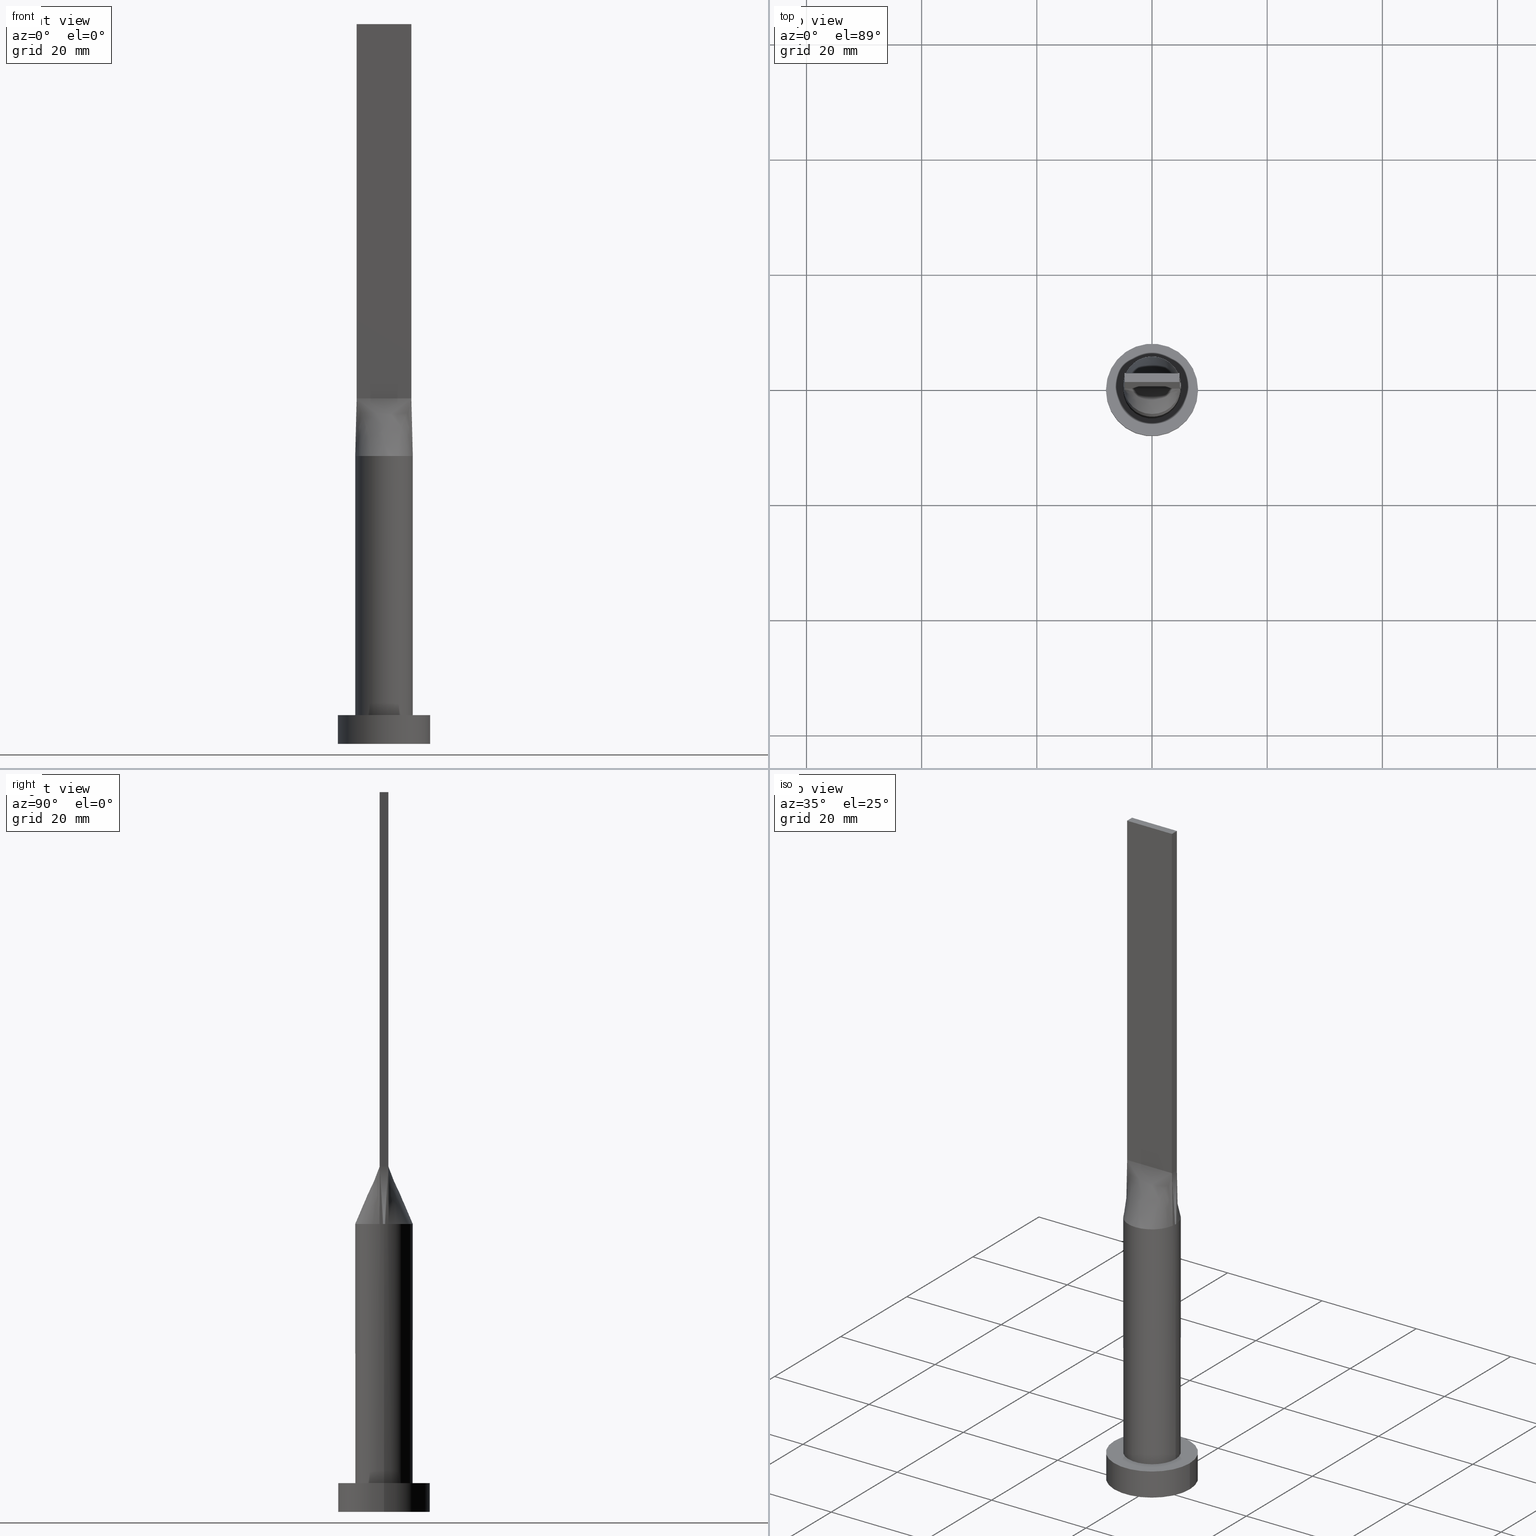
[diagram: canonical four-view strip — front | top / right | iso, engineering-drawing reading convention]
A machine part, canonical four-view strip (front | top / right | iso — engineering-drawing reading convention). The complete STEP part file that produces these views, byte-faithful:
ISO-10303-21;
HEADER;
FILE_DESCRIPTION (( 'STEP AP203' ),
    '1' );
FILE_NAME ('5fc5.STEP',
    '2023-02-13T09:35:22',
    ( '' ),
    ( '' ),
    'SwSTEP 2.0',
    'SolidWorks 2019',
    '' );
FILE_SCHEMA (( 'CONFIG_CONTROL_DESIGN' ));
ENDSEC;

DATA;
#1 = CARTESIAN_POINT ( 'NONE',  ( 2.177083333333337034, -0.7499999999999997780, 60.00000000000000000 ) ) ;
#2 = APPROVAL_DATE_TIME ( #150, #442 ) ;
#3 = CARTESIAN_POINT ( 'NONE',  ( 0.9895833333333176052, 0.7500000000000002220, 59.99999999999998579 ) ) ;
#4 = DESIGN_CONTEXT ( 'detailed design', #544, 'design' ) ;
#5 = ORIENTED_EDGE ( 'NONE', *, *, #249, .F. ) ;
#6 = COORDINATED_UNIVERSAL_TIME_OFFSET ( 1, 0, .AHEAD. ) ;
#7 = CC_DESIGN_DATE_AND_TIME_ASSIGNMENT ( #283, #380, ( #241 ) ) ;
#8 = CARTESIAN_POINT ( 'NONE',  ( -2.353781608410062010, 4.424438117685770777, 49.99999999999998579 ) ) ;
#9 = VECTOR ( 'NONE', #620, 1000.000000000000000 ) ;
#10 = CARTESIAN_POINT ( 'NONE',  ( -4.354166666666669627, 0.7500000000000002220, 60.00000000000000000 ) ) ;
#11 = CARTESIAN_POINT ( 'NONE',  ( -4.753727492665067444, 1.629988260829202007, 50.00000000000000711 ) ) ;
#12 = CARTESIAN_POINT ( 'NONE',  ( 0.000000000000000000, 0.000000000000000000, 49.99999999999999289 ) ) ;
#13 = B_SPLINE_SURFACE_WITH_KNOTS ( 'NONE', 3, 1, ( 
 ( #477, #97 ),
 ( #51, #138 ),
 ( #84, #245 ),
 ( #284, #37 ),
 ( #289, #42 ),
 ( #613, #382 ) ),
 .UNSPECIFIED., .F., .F., .F.,
 ( 4, 2, 4 ),
 ( 2, 2 ),
 ( 0.000000000000000000, 0.5000000000000000000, 1.000000000000000000 ),
 ( 0.000000000000000000, 1.000000000000000000 ),
 .UNSPECIFIED. ) ;
#14 = LINE ( 'NONE', #259, #219 ) ;
#15 = VECTOR ( 'NONE', #58, 1000.000000000000000 ) ;
#16 = ORIENTED_EDGE ( 'NONE', *, *, #342, .F. ) ;
#17 = CARTESIAN_POINT ( 'NONE',  ( -0.7119876437238006339, 4.961551549233178982, 49.99999999999999289 ) ) ;
#18 = CARTESIAN_POINT ( 'NONE',  ( 0.000000000000000000, 0.000000000000000000, 49.99999999999999289 ) ) ;
#19 = CARTESIAN_POINT ( 'NONE',  ( -4.750000000000000000, 0.7500000000000002220, 60.00000000000000000 ) ) ;
#20 = DIRECTION ( 'NONE',  ( -1.000000000000000000, 0.000000000000000000, 0.000000000000000000 ) ) ;
#21 = DIRECTION ( 'NONE',  ( -1.000000000000000000, 0.000000000000000000, 0.000000000000000000 ) ) ;
#22 = DIRECTION ( 'NONE',  ( 1.000000000000000000, 0.000000000000000000, 0.000000000000000000 ) ) ;
#23 = CARTESIAN_POINT ( 'NONE',  ( 4.999812818728077701, 1.241126956226958231E-15, 49.99999999999999289 ) ) ;
#24 = CARTESIAN_POINT ( 'NONE',  ( -4.332026455536841070, 2.547220758687717801, 49.99999999999999289 ) ) ;
#25 = EDGE_CURVE ( 'NONE', #526, #617, #64, .T. ) ;
#26 = CARTESIAN_POINT ( 'NONE',  ( -2.353781608410061121, -4.424438117685769889, 49.99999999999998579 ) ) ;
#27 = ORIENTED_EDGE ( 'NONE', *, *, #452, .T. ) ;
#28 = LOCAL_TIME ( 10, 35, 22.00000000000000000, #332 ) ;
#29 = CARTESIAN_POINT ( 'NONE',  ( 4.750000000000000000, -0.7499999999999997780, 60.00000000000000000 ) ) ;
#30 = CARTESIAN_POINT ( 'NONE',  ( 2.353781608410061121, -4.424438117685769889, 49.99999999999998579 ) ) ;
#31 = ORIENTED_EDGE ( 'NONE', *, *, #25, .T. ) ;
#32 = CARTESIAN_POINT ( 'NONE',  ( 0.000000000000000000, 0.000000000000000000, 0.000000000000000000 ) ) ;
#33 = DIRECTION ( 'NONE',  ( 1.000000000000000000, 0.000000000000000000, 0.000000000000000000 ) ) ;
#34 = EDGE_CURVE ( 'NONE', #548, #294, #518, .T. ) ;
#35 = ADVANCED_BREP_SHAPE_REPRESENTATION ( '5fc5', ( #136, #366 ), #166 ) ;
#36 = AXIS2_PLACEMENT_3D ( 'NONE', #94, #248, #38 ) ;
#37 = CARTESIAN_POINT ( 'NONE',  ( 4.750000000000000000, 0.2500000000000003331, 59.99999999999999289 ) ) ;
#38 = DIRECTION ( 'NONE',  ( 1.000000000000000000, 0.000000000000000000, -0.000000000000000000 ) ) ;
#39 = ORIENTED_EDGE ( 'NONE', *, *, #318, .T. ) ;
#40 = AXIS2_PLACEMENT_3D ( 'NONE', #222, #365, #363 ) ;
#41 = APPROVAL_DATE_TIME ( #469, #49 ) ;
#42 = CARTESIAN_POINT ( 'NONE',  ( 4.750000000000000000, 0.5000000000000002220, 59.99999999999999289 ) ) ;
#43 = ORIENTED_EDGE ( 'NONE', *, *, #361, .F. ) ;
#44 = LINE ( 'NONE', #390, #9 ) ;
#45 = B_SPLINE_CURVE_WITH_KNOTS ( 'NONE', 3,
 ( #293, #217, #206, #218, #307, #65, #261, #482, #158, #524, #233, #409, #319, #447, #17, #403, #322, #594, #275, #270, #597, #547, #24, #168, #538, #362 ),
 .UNSPECIFIED., .F., .F.,
 ( 4, 2, 2, 2, 2, 2, 2, 2, 2, 2, 2, 2, 4 ),
 ( 0.000000000000000000, 0.1250000000000001388, 0.2500000000000002220, 0.3125000000000002776, 0.3750000000000002776, 0.4375000000000002776, 0.5000000000000002220, 0.5625000000000002220, 0.6250000000000001110, 0.6875000000000001110, 0.7500000000000001110, 0.8750000000000001110, 1.000000000000000000 ),
 .UNSPECIFIED. ) ;
#46 = EDGE_LOOP ( 'NONE', ( #335, #98, #445, #104 ) ) ;
#47 = CARTESIAN_POINT ( 'NONE',  ( 1.583333333333336146, -0.7499999999999997780, 60.00000000000000000 ) ) ;
#48 = EDGE_LOOP ( 'NONE', ( #394, #505, #595, #588 ) ) ;
#49 = APPROVAL ( #432, 'NEUR�EN�' ) ;
#50 = AXIS2_PLACEMENT_3D ( 'NONE', #133, #127, #500 ) ;
#51 = CARTESIAN_POINT ( 'NONE',  ( 4.979355367185886116, -0.5230561106082984857, 49.99999999999999289 ) ) ;
#52 = LOCAL_TIME ( 10, 35, 22.00000000000000000, #6 ) ;
#53 = CARTESIAN_POINT ( 'NONE',  ( -4.750000000000000000, -0.7499999999999991118, 60.00000000000000000 ) ) ;
#54 = CARTESIAN_POINT ( 'NONE',  ( 0.3958333333333181603, 0.7500000000000002220, 59.99999999999998579 ) ) ;
#55 = EDGE_CURVE ( 'NONE', #131, #379, #154, .T. ) ;
#56 = CLOSED_SHELL ( 'NONE', ( #215, #273, #116, #221, #281, #152, #427, #479, #256, #513, #463, #392, #621, #530, #103 ) ) ;
#57 = CARTESIAN_POINT ( 'NONE',  ( 2.643217737595826566, 4.256483892511437439, 49.99999999999999289 ) ) ;
#58 = DIRECTION ( 'NONE',  ( 1.000000000000000000, -6.847592668329501559E-17, 0.000000000000000000 ) ) ;
#59 = CARTESIAN_POINT ( 'NONE',  ( 8.000000000000000000, 9.797174393178825657E-16, 5.000000000000000000 ) ) ;
#60 = CARTESIAN_POINT ( 'NONE',  ( -4.874625637456156291, 1.186344398896586716, 49.99999999999998579 ) ) ;
#61 = VERTEX_POINT ( 'NONE', #184 ) ;
#62 = CIRCLE ( 'NONE', #611, 5.000000000000000000 ) ;
#63 = CARTESIAN_POINT ( 'NONE',  ( -4.750000000000000000, 0.7500000000000002220, 125.0000000000000000 ) ) ;
#64 = LINE ( 'NONE', #437, #180 ) ;
#65 = CARTESIAN_POINT ( 'NONE',  ( 3.404830936252119411, 3.673931880027066388, 50.00000000000000000 ) ) ;
#66 = EDGE_CURVE ( 'NONE', #617, #325, #85, .T. ) ;
#67 = PERSON_AND_ORGANIZATION ( #155, #200 ) ;
#68 = CARTESIAN_POINT ( 'NONE',  ( 1.732223102076449583, -4.702695359254404295, 49.99999999999999289 ) ) ;
#69 = CIRCLE ( 'NONE', #557, 5.000000000000000000 ) ;
#70 = FACE_OUTER_BOUND ( 'NONE', #471, .T. ) ;
#71 = CARTESIAN_POINT ( 'NONE',  ( 0.000000000000000000, 0.000000000000000000, 5.000000000000000000 ) ) ;
#72 = CARTESIAN_POINT ( 'NONE',  ( -4.753727492665065668, -1.629988260829201119, 50.00000000000000000 ) ) ;
#73 = EDGE_CURVE ( 'NONE', #294, #548, #405, .T. ) ;
#74 =( NAMED_UNIT ( * ) SI_UNIT ( $, .STERADIAN. ) SOLID_ANGLE_UNIT ( ) );
#75 = CARTESIAN_POINT ( 'NONE',  ( 0.000000000000000000, 0.000000000000000000, 49.99999999999999289 ) ) ;
#76 = CARTESIAN_POINT ( 'NONE',  ( -4.979355367185886116, 0.5230561106082979306, 49.99999999999999289 ) ) ;
#77 = CARTESIAN_POINT ( 'NONE',  ( 1.400150253878312157, -4.812847332616943419, 49.99999999999997868 ) ) ;
#78 = CARTESIAN_POINT ( 'NONE',  ( 0.000000000000000000, 0.000000000000000000, 49.99999999999999289 ) ) ;
#79 = VECTOR ( 'NONE', #177, 1000.000000000000114 ) ;
#80 = PLANE ( 'NONE',  #264 ) ;
#81 = CARTESIAN_POINT ( 'NONE',  ( 0.000000000000000000, 0.000000000000000000, 5.000000000000000000 ) ) ;
#82 = ORIENTED_EDGE ( 'NONE', *, *, #553, .F. ) ;
#83 = APPROVAL_ROLE ( '' ) ;
#84 = CARTESIAN_POINT ( 'NONE',  ( 4.999625637456156291, -0.2615280553041495204, 49.99999999999999289 ) ) ;
#85 = LINE ( 'NONE', #179, #290 ) ;
#86 = CALENDAR_DATE ( 2023, 13, 2 ) ;
#87 = CYLINDRICAL_SURFACE ( 'NONE', #581, 5.000000000000000000 ) ;
#88 = DIRECTION ( 'NONE',  ( 0.000000000000000000, 0.000000000000000000, 1.000000000000000000 ) ) ;
#89 = DIRECTION ( 'NONE',  ( -1.000000000000000000, 0.000000000000000000, 0.000000000000000000 ) ) ;
#90 = VERTEX_POINT ( 'NONE', #338 ) ;
#91 = APPROVAL_PERSON_ORGANIZATION ( #519, #442, #83 ) ;
#92 = CARTESIAN_POINT ( 'NONE',  ( 4.354166666666667851, -0.7499999999999997780, 60.00000000000000000 ) ) ;
#93 = FACE_OUTER_BOUND ( 'NONE', #413, .T. ) ;
#94 = CARTESIAN_POINT ( 'NONE',  ( 0.000000000000000000, 0.000000000000000000, 5.000000000000000000 ) ) ;
#95 = CC_DESIGN_PERSON_AND_ORGANIZATION_ASSIGNMENT ( #435, #527, ( #246 ) ) ;
#96 = CARTESIAN_POINT ( 'NONE',  ( 0.000000000000000000, 0.000000000000000000, 49.99999999999999289 ) ) ;
#97 = CARTESIAN_POINT ( 'NONE',  ( 4.750000000000000000, -0.7499999999999997780, 60.00000000000000000 ) ) ;
#98 = ORIENTED_EDGE ( 'NONE', *, *, #34, .F. ) ;
#99 = APPROVAL_DATE_TIME ( #417, #388 ) ;
#100 = VECTOR ( 'NONE', #323, 1000.000000000000000 ) ;
#101 = CARTESIAN_POINT ( 'NONE',  ( -1.400150253878312823, 4.812847332616943419, 49.99999999999999289 ) ) ;
#102 = EDGE_LOOP ( 'NONE', ( #282, #443, #607, #359 ) ) ;
#103 = ADVANCED_FACE ( 'NONE', ( #93 ), #602, .T. ) ;
#104 = ORIENTED_EDGE ( 'NONE', *, *, #329, .T. ) ;
#105 = PERSON_AND_ORGANIZATION_ROLE ( 'creator' ) ;
#106 = CARTESIAN_POINT ( 'NONE',  ( -2.770833333333342807, 0.7500000000000002220, 60.00000000000000000 ) ) ;
#107 = PERSON_AND_ORGANIZATION ( #155, #200 ) ;
#108 = AXIS2_PLACEMENT_3D ( 'NONE', #81, #560, #568 ) ;
#109 = CARTESIAN_POINT ( 'NONE',  ( 0.7916666666666508645, 0.7500000000000002220, 59.99999999999998579 ) ) ;
#110 = PRODUCT ( '5fc5', '5fc5', '', ( #119 ) ) ;
#111 = CARTESIAN_POINT ( 'NONE',  ( 5.000000000000000000, 6.123233995736765296E-16, 5.000000000000000000 ) ) ;
#112 = LINE ( 'NONE', #63, #387 ) ;
#113 = AXIS2_PLACEMENT_3D ( 'NONE', #451, #272, #21 ) ;
#114 = DIRECTION ( 'NONE',  ( -0.000000000000000000, -0.000000000000000000, -1.000000000000000000 ) ) ;
#115 = DIRECTION ( 'NONE',  ( -0.000000000000000000, -0.000000000000000000, -1.000000000000000000 ) ) ;
#116 = ADVANCED_FACE ( 'NONE', ( #429 ), #170, .T. ) ;
#117 = DIRECTION ( 'NONE',  ( -0.000000000000000000, -0.000000000000000000, -1.000000000000000000 ) ) ;
#118 = ORIENTED_EDGE ( 'NONE', *, *, #593, .T. ) ;
#119 = MECHANICAL_CONTEXT ( 'NONE', #162, 'mechanical' ) ;
#120 = LINE ( 'NONE', #496, #157 ) ;
#121 = ORIENTED_EDGE ( 'NONE', *, *, #137, .F. ) ;
#122 = CARTESIAN_POINT ( 'NONE',  ( 4.750000000000000000, 0.7500000000000002220, 60.00000000000000000 ) ) ;
#123 = CC_DESIGN_PERSON_AND_ORGANIZATION_ASSIGNMENT ( #295, #105, ( #241 ) ) ;
#124 = FACE_BOUND ( 'NONE', #468, .T. ) ;
#125 = DIRECTION ( 'NONE',  ( 1.000000000000000000, 0.000000000000000000, 0.000000000000000000 ) ) ;
#126 = CARTESIAN_POINT ( 'NONE',  ( -0.7916666666666640761, -0.7499999999999995559, 60.00000000000000000 ) ) ;
#127 = DIRECTION ( 'NONE',  ( 0.000000000000000000, 0.000000000000000000, 1.000000000000000000 ) ) ;
#128 = PLANE ( 'NONE',  #36 ) ;
#129 = PERSON_AND_ORGANIZATION_ROLE ( 'design_owner' ) ;
#130 = CARTESIAN_POINT ( 'NONE',  ( -4.750000000000000000, -0.7499999999999991118, 60.00000000000000000 ) ) ;
#131 = VERTEX_POINT ( 'NONE', #360 ) ;
#132 = CARTESIAN_POINT ( 'NONE',  ( -0.3958333333333313164, -0.7499999999999995559, 59.99999999999998579 ) ) ;
#133 = CARTESIAN_POINT ( 'NONE',  ( 0.000000000000000000, 0.000000000000000000, 0.000000000000000000 ) ) ;
#134 = CIRCLE ( 'NONE', #532, 8.000000000000000000 ) ;
#135 = ORIENTED_EDGE ( 'NONE', *, *, #494, .T. ) ;
#136 = MANIFOLD_SOLID_BREP ( 'P�idat vysunut�m5', #56 ) ;
#137 = EDGE_CURVE ( 'NONE', #325, #90, #309, .T. ) ;
#138 = CARTESIAN_POINT ( 'NONE',  ( 4.750000000000000000, -0.4999999999999996669, 59.99999999999999289 ) ) ;
#139 = CARTESIAN_POINT ( 'NONE',  ( 0.000000000000000000, 0.000000000000000000, 125.0000000000000000 ) ) ;
#140 = VERTEX_POINT ( 'NONE', #326 ) ;
#141 = PERSON_AND_ORGANIZATION ( #155, #200 ) ;
#142 = DIRECTION ( 'NONE',  ( 1.000000000000000000, 0.000000000000000000, 0.000000000000000000 ) ) ;
#143 = CARTESIAN_POINT ( 'NONE',  ( 1.979166666666669849, -0.7499999999999997780, 60.00000000000000000 ) ) ;
#144 = CARTESIAN_POINT ( 'NONE',  ( 3.166666666666658081, 0.7500000000000002220, 60.00000000000000000 ) ) ;
#145 = EDGE_CURVE ( 'NONE', #202, #220, #344, .T. ) ;
#146 = ORIENTED_EDGE ( 'NONE', *, *, #361, .T. ) ;
#147 = CARTESIAN_POINT ( 'NONE',  ( 2.643217737595827455, -4.256483892511438327, 49.99999999999998579 ) ) ;
#148 = DIRECTION ( 'NONE',  ( 1.000000000000000000, 0.000000000000000000, 0.000000000000000000 ) ) ;
#149 = FACE_OUTER_BOUND ( 'NONE', #498, .T. ) ;
#150 = DATE_AND_TIME ( #189, #230 ) ;
#151 = CARTESIAN_POINT ( 'NONE',  ( -4.938814826645345768, -0.7798128673650532861, 49.99999999999999289 ) ) ;
#152 = ADVANCED_FACE ( 'NONE', ( #510 ), #87, .T. ) ;
#153 = DIRECTION ( 'NONE',  ( 0.000000000000000000, 0.000000000000000000, 1.000000000000000000 ) ) ;
#154 = LINE ( 'NONE', #346, #552 ) ;
#155 = PERSON ( 'NEUR�EN�', 'NEUR�EN�', 'NEUR�EN�', ('NEUR�EN�'), ('NEUR�EN�'), ('NEUR�EN�') ) ;
#156 = DATE_AND_TIME ( #563, #600 ) ;
#157 = VECTOR ( 'NONE', #263, 1000.000000000000000 ) ;
#158 = CARTESIAN_POINT ( 'NONE',  ( 2.353781608410062454, 4.424438117685770777, 49.99999999999999289 ) ) ;
#159 = PERSON_AND_ORGANIZATION_ROLE ( 'classification_officer' ) ;
#160 = DIRECTION ( 'NONE',  ( 0.01887803397728732291, -0.002980742206940072483, 0.9998173508241633423 ) ) ;
#161 = DIRECTION ( 'NONE',  ( -0.01887803397728732291, -0.002980742206940062075, -0.9998173508241633423 ) ) ;
#162 = APPLICATION_CONTEXT ( 'configuration controlled 3d designs of mechanical parts and assemblies' ) ;
#163 = CARTESIAN_POINT ( 'NONE',  ( -8.000000000000000000, 0.000000000000000000, 5.000000000000000000 ) ) ;
#164 = EDGE_CURVE ( 'NONE', #131, #617, #187, .T. ) ;
#165 = CARTESIAN_POINT ( 'NONE',  ( 0.7119876437238013001, 4.961551549233180758, 49.99999999999999289 ) ) ;
#166 =( GEOMETRIC_REPRESENTATION_CONTEXT ( 3 ) GLOBAL_UNCERTAINTY_ASSIGNED_CONTEXT ( ( #487 ) ) GLOBAL_UNIT_ASSIGNED_CONTEXT ( ( #501, #554, #74 ) ) REPRESENTATION_CONTEXT ( 'NONE', 'WORKASPACE' ) );
#167 = EDGE_LOOP ( 'NONE', ( #534, #232, #27, #491, #419 ) ) ;
#168 = CARTESIAN_POINT ( 'NONE',  ( -4.753727492665067444, 1.629988260829202007, 50.00000000000000711 ) ) ;
#169 = DIRECTION ( 'NONE',  ( 0.000000000000000000, 0.000000000000000000, 1.000000000000000000 ) ) ;
#170 = CYLINDRICAL_SURFACE ( 'NONE', #566, 8.000000000000000000 ) ;
#171 = PRODUCT_DEFINITION_SHAPE ( 'NONE', 'NONE',  #241 ) ;
#172 = LINE ( 'NONE', #455, #79 ) ;
#173 = CARTESIAN_POINT ( 'NONE',  ( -2.643217737595827010, -4.256483892511436551, 49.99999999999997868 ) ) ;
#174 = APPLICATION_PROTOCOL_DEFINITION ( 'international standard', 'config_control_design', 1994, #162 ) ;
#175 = ORIENTED_EDGE ( 'NONE', *, *, #55, .F. ) ;
#176 = CARTESIAN_POINT ( 'NONE',  ( 0.000000000000000000, 0.000000000000000000, 0.000000000000000000 ) ) ;
#177 = DIRECTION ( 'NONE',  ( -0.01887803397728732291, 0.002980742206940386902, 0.9998173508241633423 ) ) ;
#178 = LINE ( 'NONE', #19, #186 ) ;
#179 = CARTESIAN_POINT ( 'NONE',  ( 4.750000000000000000, 0.7500000000000002220, 60.00000000000000000 ) ) ;
#180 = VECTOR ( 'NONE', #529, 1000.000000000000000 ) ;
#181 = ORIENTED_EDGE ( 'NONE', *, *, #73, .T. ) ;
#182 = APPROVAL_ROLE ( '' ) ;
#183 = CARTESIAN_POINT ( 'NONE',  ( -4.354166666666666963, -0.7499999999999992228, 60.00000000000000000 ) ) ;
#184 = CARTESIAN_POINT ( 'NONE',  ( -4.938831943662458812, 0.7798155886440080176, 49.99999999999999289 ) ) ;
#185 = VERTEX_POINT ( 'NONE', #467 ) ;
#186 = VECTOR ( 'NONE', #271, 1000.000000000000000 ) ;
#187 = LINE ( 'NONE', #199, #590 ) ;
#188 = ORIENTED_EDGE ( 'NONE', *, *, #553, .T. ) ;
#189 = CALENDAR_DATE ( 2023, 13, 2 ) ;
#190 = CARTESIAN_POINT ( 'NONE',  ( 3.168723755431094080, -3.881165404529570484, 50.00000000000000000 ) ) ;
#191 = ORIENTED_EDGE ( 'NONE', *, *, #292, .F. ) ;
#192 = ORIENTED_EDGE ( 'NONE', *, *, #34, .T. ) ;
#193 = APPROVAL_ROLE ( '' ) ;
#194 = CARTESIAN_POINT ( 'NONE',  ( 3.958333333333328596, 0.7500000000000002220, 60.00000000000000000 ) ) ;
#195 = CC_DESIGN_PERSON_AND_ORGANIZATION_ASSIGNMENT ( #107, #159, ( #592 ) ) ;
#196 = ORIENTED_EDGE ( 'NONE', *, *, #474, .F. ) ;
#197 = CARTESIAN_POINT ( 'NONE',  ( -4.999625637456156291, 0.2615280553041492984, 49.99999999999999289 ) ) ;
#198 = CARTESIAN_POINT ( 'NONE',  ( 2.177083333333320159, 0.7500000000000002220, 59.99999999999998579 ) ) ;
#199 = CARTESIAN_POINT ( 'NONE',  ( -4.750000000000000000, -0.7499999999999991118, 60.00000000000000000 ) ) ;
#200 = ORGANIZATION ( 'NEUR�EN�', 'NEUR�EN�', '' ) ;
#201 = DIRECTION ( 'NONE',  ( 0.000000000000000000, -1.000000000000000000, 0.000000000000000000 ) ) ;
#202 = VERTEX_POINT ( 'NONE', #111 ) ;
#203 = EDGE_CURVE ( 'NONE', #286, #280, #277, .T. ) ;
#204 = CARTESIAN_POINT ( 'NONE',  ( 4.750000000000000000, 0.7500000000000002220, 125.0000000000000000 ) ) ;
#205 = DIRECTION ( 'NONE',  ( 0.000000000000000000, 0.000000000000000000, 1.000000000000000000 ) ) ;
#206 = CARTESIAN_POINT ( 'NONE',  ( 4.753727492665065668, 1.629988260829201563, 49.99999999999998579 ) ) ;
#207 = DATE_TIME_ROLE ( 'classification_date' ) ;
#208 = CIRCLE ( 'NONE', #570, 8.000000000000000000 ) ;
#209 = CARTESIAN_POINT ( 'NONE',  ( -0.9895833333333476922, 0.7500000000000002220, 60.00000000000000000 ) ) ;
#210 = DIRECTION ( 'NONE',  ( 0.000000000000000000, 0.000000000000000000, 1.000000000000000000 ) ) ;
#211 = CARTESIAN_POINT ( 'NONE',  ( -4.750000000000000000, 0.7500000000000002220, 60.00000000000000000 ) ) ;
#212 = EDGE_LOOP ( 'NONE', ( #556, #561, #562, #31 ) ) ;
#213 = CARTESIAN_POINT ( 'NONE',  ( 4.750000000000000000, 0.7500000000000002220, 125.0000000000000000 ) ) ;
#214 = CARTESIAN_POINT ( 'NONE',  ( 8.000000000000000000, 9.797174393178825657E-16, 0.000000000000000000 ) ) ;
#215 = ADVANCED_FACE ( 'NONE', ( #70 ), #266, .T. ) ;
#216 = AXIS2_PLACEMENT_3D ( 'NONE', #431, #210, #391 ) ;
#217 = CARTESIAN_POINT ( 'NONE',  ( 4.874625637456157179, 1.186344398896585606, 49.99999999999999289 ) ) ;
#218 = CARTESIAN_POINT ( 'NONE',  ( 4.332026455536839293, 2.547220758687718689, 49.99999999999998579 ) ) ;
#219 = VECTOR ( 'NONE', #160, 1000.000000000000114 ) ;
#220 = VERTEX_POINT ( 'NONE', #457 ) ;
#221 = ADVANCED_FACE ( 'NONE', ( #124, #599 ), #128, .T. ) ;
#222 = CARTESIAN_POINT ( 'NONE',  ( -4.750000000000000000, -0.7499999999999991118, 125.0000000000000000 ) ) ;
#223 = CARTESIAN_POINT ( 'NONE',  ( -3.166666666666665630, -0.7499999999999993339, 60.00000000000000000 ) ) ;
#224 = CARTESIAN_POINT ( 'NONE',  ( 0.000000000000000000, 0.000000000000000000, 5.000000000000000000 ) ) ;
#225 = PERSON_AND_ORGANIZATION ( #155, #200 ) ;
#226 = AXIS2_PLACEMENT_3D ( 'NONE', #139, #550, #328 ) ;
#227 = DIRECTION ( 'NONE',  ( -0.000000000000000000, -0.000000000000000000, -1.000000000000000000 ) ) ;
#228 = ORIENTED_EDGE ( 'NONE', *, *, #292, .T. ) ;
#229 = DIRECTION ( 'NONE',  ( 0.000000000000000000, 0.000000000000000000, 1.000000000000000000 ) ) ;
#230 = LOCAL_TIME ( 10, 35, 22.00000000000000000, #481 ) ;
#231 = VECTOR ( 'NONE', #396, 1000.000000000000000 ) ;
#232 = ORIENTED_EDGE ( 'NONE', *, *, #474, .T. ) ;
#233 = CARTESIAN_POINT ( 'NONE',  ( 1.400150253878312823, 4.812847332616943419, 49.99999999999999289 ) ) ;
#234 = CARTESIAN_POINT ( 'NONE',  ( 0.1979166666666679897, -0.7499999999999994449, 59.99999999999997868 ) ) ;
#235 = EDGE_CURVE ( 'NONE', #464, #526, #305, .T. ) ;
#236 = COORDINATED_UNIVERSAL_TIME_OFFSET ( 1, 0, .AHEAD. ) ;
#237 = FACE_OUTER_BOUND ( 'NONE', #586, .T. ) ;
#238 = SECURITY_CLASSIFICATION_LEVEL ( 'unclassified' ) ;
#239 = CARTESIAN_POINT ( 'NONE',  ( 2.770833333333337034, -0.7499999999999997780, 60.00000000000000000 ) ) ;
#240 = ORIENTED_EDGE ( 'NONE', *, *, #604, .T. ) ;
#241 = PRODUCT_DEFINITION ( 'NEZN�M�', '', #246, #4 ) ;
#242 = CARTESIAN_POINT ( 'NONE',  ( 4.938833698301754893, -0.7798158709413661738, 49.99999999999999289 ) ) ;
#243 = DIRECTION ( 'NONE',  ( -0.000000000000000000, 1.000000000000000000, -0.000000000000000000 ) ) ;
#244 = CARTESIAN_POINT ( 'NONE',  ( 4.750000000000000000, -0.7499999999999997780, 125.0000000000000000 ) ) ;
#245 = CARTESIAN_POINT ( 'NONE',  ( 4.750000000000000000, -0.2499999999999996669, 59.99999999999999289 ) ) ;
#246 = PRODUCT_DEFINITION_FORMATION_WITH_SPECIFIED_SOURCE ( 'LIBOVOLN�', '', #110, .NOT_KNOWN. ) ;
#247 = CARTESIAN_POINT ( 'NONE',  ( 4.354166666666664298, 0.7500000000000002220, 60.00000000000000000 ) ) ;
#248 = DIRECTION ( 'NONE',  ( 0.000000000000000000, 0.000000000000000000, 1.000000000000000000 ) ) ;
#249 = EDGE_CURVE ( 'NONE', #480, #330, #458, .T. ) ;
#250 = APPROVAL_STATUS ( 'not_yet_approved' ) ;
#251 = CARTESIAN_POINT ( 'NONE',  ( -1.385416666666680285, 0.7500000000000002220, 60.00000000000000000 ) ) ;
#252 = ORIENTED_EDGE ( 'NONE', *, *, #369, .F. ) ;
#253 = VERTEX_POINT ( 'NONE', #214 ) ;
#254 = CARTESIAN_POINT ( 'NONE',  ( 1.583333333333318604, 0.7500000000000002220, 59.99999999999998579 ) ) ;
#255 = VECTOR ( 'NONE', #333, 1000.000000000000114 ) ;
#256 = ADVANCED_FACE ( 'NONE', ( #398 ), #603, .T. ) ;
#257 = CARTESIAN_POINT ( 'NONE',  ( -3.166666666666675400, 0.7500000000000002220, 60.00000000000000000 ) ) ;
#258 = CARTESIAN_POINT ( 'NONE',  ( -4.750000000000000000, -0.7499999999999991118, 125.0000000000000000 ) ) ;
#259 = CARTESIAN_POINT ( 'NONE',  ( -4.844407413322673328, 0.7649064336825274202, 54.99999999999999289 ) ) ;
#260 = VECTOR ( 'NONE', #411, 1000.000000000000000 ) ;
#261 = CARTESIAN_POINT ( 'NONE',  ( 3.168723755431093192, 3.881165404529570040, 49.99999999999999289 ) ) ;
#262 = EDGE_CURVE ( 'NONE', #294, #253, #300, .T. ) ;
#263 = DIRECTION ( 'NONE',  ( -0.000000000000000000, -0.000000000000000000, -1.000000000000000000 ) ) ;
#264 = AXIS2_PLACEMENT_3D ( 'NONE', #276, #601, #372 ) ;
#265 = DIRECTION ( 'NONE',  ( 1.000000000000000000, 0.000000000000000000, 0.000000000000000000 ) ) ;
#266 = CYLINDRICAL_SURFACE ( 'NONE', #113, 5.000000000000000000 ) ;
#267 = B_SPLINE_SURFACE_WITH_KNOTS ( 'NONE', 3, 1, ( 
 ( #424, #287 ),
 ( #430, #247 ),
 ( #616, #194 ),
 ( #385, #144 ),
 ( #337, #426 ),
 ( #618, #198 ),
 ( #386, #571 ),
 ( #57, #254 ),
 ( #297, #399 ),
 ( #483, #3 ),
 ( #582, #109 ),
 ( #165, #54 ),
 ( #395, #304 ),
 ( #345, #393 ),
 ( #591, #528 ),
 ( #101, #348 ),
 ( #436, #209 ),
 ( #8, #251 ),
 ( #301, #578 ),
 ( #439, #486 ),
 ( #440, #492 ),
 ( #585, #106 ),
 ( #358, #257 ),
 ( #11, #355 ),
 ( #60, #10 ),
 ( #533, #211 ) ),
 .UNSPECIFIED., .F., .F., .F.,
 ( 4, 2, 2, 2, 2, 2, 2, 2, 2, 2, 2, 2, 4 ),
 ( 2, 2 ),
 ( 0.000000000000000000, 0.1250000000000001388, 0.2500000000000002220, 0.3125000000000002776, 0.3750000000000002776, 0.4375000000000002776, 0.5000000000000002220, 0.5625000000000002220, 0.6250000000000001110, 0.6875000000000001110, 0.7500000000000001110, 0.8750000000000001110, 1.000000000000000000 ),
 ( 0.000000000000000000, 1.000000000000000000 ),
 .UNSPECIFIED. ) ;
#268 = CARTESIAN_POINT ( 'NONE',  ( -2.770833333333332149, -0.7499999999999994449, 60.00000000000000000 ) ) ;
#269 = CARTESIAN_POINT ( 'NONE',  ( 0.000000000000000000, 0.000000000000000000, 49.99999999999999289 ) ) ;
#270 = CARTESIAN_POINT ( 'NONE',  ( -3.168723755431092748, 3.881165404529570484, 49.99999999999997868 ) ) ;
#271 = DIRECTION ( 'NONE',  ( 0.000000000000000000, -1.000000000000000000, 0.000000000000000000 ) ) ;
#272 = DIRECTION ( 'NONE',  ( -0.000000000000000000, -0.000000000000000000, -1.000000000000000000 ) ) ;
#273 = ADVANCED_FACE ( 'NONE', ( #321 ), #402, .T. ) ;
#274 = CARTESIAN_POINT ( 'NONE',  ( 5.000000000000000000, 6.123233995736765296E-16, 49.99999999999999289 ) ) ;
#275 = CARTESIAN_POINT ( 'NONE',  ( -2.643217737595827455, 4.256483892511438327, 49.99999999999998579 ) ) ;
#276 = CARTESIAN_POINT ( 'NONE',  ( -4.750000000000000000, 0.7500000000000002220, 125.0000000000000000 ) ) ;
#277 = LINE ( 'NONE', #408, #484 ) ;
#278 = ORIENTED_EDGE ( 'NONE', *, *, #164, .T. ) ;
#279 = CARTESIAN_POINT ( 'NONE',  ( 4.938814826645345768, -0.7798128673650571718, 49.99999999999999289 ) ) ;
#280 = VERTEX_POINT ( 'NONE', #373 ) ;
#281 = ADVANCED_FACE ( 'NONE', ( #416 ), #551, .F. ) ;
#282 = ORIENTED_EDGE ( 'NONE', *, *, #308, .T. ) ;
#283 = DATE_AND_TIME ( #86, #28 ) ;
#284 = CARTESIAN_POINT ( 'NONE',  ( 4.999625637456156291, 0.2615280553041483547, 49.99999999999999289 ) ) ;
#285 = AXIS2_PLACEMENT_3D ( 'NONE', #204, #201, #465 ) ;
#286 = VERTEX_POINT ( 'NONE', #213 ) ;
#287 = CARTESIAN_POINT ( 'NONE',  ( 4.750000000000000000, 0.7500000000000002220, 60.00000000000000000 ) ) ;
#288 = ORIENTED_EDGE ( 'NONE', *, *, #25, .F. ) ;
#289 = CARTESIAN_POINT ( 'NONE',  ( 4.979355367185886116, 0.5230561106082972644, 49.99999999999999289 ) ) ;
#290 = VECTOR ( 'NONE', #243, 1000.000000000000000 ) ;
#291 = CARTESIAN_POINT ( 'NONE',  ( 4.844407413322673328, 0.7649064336825270871, 54.99999999999999289 ) ) ;
#292 = EDGE_CURVE ( 'NONE', #615, #379, #472, .T. ) ;
#293 = CARTESIAN_POINT ( 'NONE',  ( 4.938814826645345768, 0.7798128673650538412, 49.99999999999999289 ) ) ;
#294 = VERTEX_POINT ( 'NONE', #543 ) ;
#295 = PERSON_AND_ORGANIZATION ( #155, #200 ) ;
#296 = CARTESIAN_POINT ( 'NONE',  ( -4.750000000000000000, -0.4999999999999990563, 59.99999999999999289 ) ) ;
#297 = CARTESIAN_POINT ( 'NONE',  ( 2.353781608410062454, 4.424438117685770777, 49.99999999999999289 ) ) ;
#298 = COORDINATED_UNIVERSAL_TIME_OFFSET ( 1, 0, .AHEAD. ) ;
#299 = CC_DESIGN_PERSON_AND_ORGANIZATION_ASSIGNMENT ( #141, #506, ( #246 ) ) ;
#300 = LINE ( 'NONE', #59, #231 ) ;
#301 = CARTESIAN_POINT ( 'NONE',  ( -2.643217737595827455, 4.256483892511438327, 49.99999999999998579 ) ) ;
#302 = AXIS2_PLACEMENT_3D ( 'NONE', #397, #520, #153 ) ;
#303 = CC_DESIGN_APPROVAL ( #49, ( #592 ) ) ;
#304 = CARTESIAN_POINT ( 'NONE',  ( 0.1979166666666522800, 0.7500000000000001110, 59.99999999999997868 ) ) ;
#305 = LINE ( 'NONE', #258, #15 ) ;
#306 = CARTESIAN_POINT ( 'NONE',  ( -4.999625637456156291, -0.2615280553041481326, 49.99999999999999289 ) ) ;
#307 = CARTESIAN_POINT ( 'NONE',  ( 4.029217956433126524, 3.021257902548482477, 50.00000000000000000 ) ) ;
#308 = EDGE_CURVE ( 'NONE', #379, #480, #410, .T. ) ;
#309 = LINE ( 'NONE', #310, #260 ) ;
#310 = CARTESIAN_POINT ( 'NONE',  ( -4.750000000000000000, 0.7500000000000002220, 60.00000000000000000 ) ) ;
#311 = CARTESIAN_POINT ( 'NONE',  ( 0.3560391241594588196, -5.000000000000000888, 50.00000000000000000 ) ) ;
#312 = CARTESIAN_POINT ( 'NONE',  ( 0.000000000000000000, 0.000000000000000000, 5.000000000000000000 ) ) ;
#313 = LINE ( 'NONE', #401, #541 ) ;
#314 = DIRECTION ( 'NONE',  ( 0.000000000000000000, 0.000000000000000000, 1.000000000000000000 ) ) ;
#315 = APPROVAL_PERSON_ORGANIZATION ( #485, #49, #182 ) ;
#316 = ORIENTED_EDGE ( 'NONE', *, *, #262, .T. ) ;
#317 = CARTESIAN_POINT ( 'NONE',  ( -4.874625637456154514, -1.186344398896584718, 50.00000000000000000 ) ) ;
#318 = EDGE_CURVE ( 'NONE', #253, #140, #208, .T. ) ;
#319 = CARTESIAN_POINT ( 'NONE',  ( 0.3560391241594590972, 5.000000000000001776, 50.00000000000000000 ) ) ;
#320 = CARTESIAN_POINT ( 'NONE',  ( 0.3958333333333353132, -0.7499999999999994449, 59.99999999999998579 ) ) ;
#321 = FACE_OUTER_BOUND ( 'NONE', #546, .T. ) ;
#322 = CARTESIAN_POINT ( 'NONE',  ( -1.732223102076449806, 4.702695359254402518, 49.99999999999998579 ) ) ;
#323 = DIRECTION ( 'NONE',  ( -0.000000000000000000, -0.000000000000000000, -1.000000000000000000 ) ) ;
#324 = AXIS2_PLACEMENT_3D ( 'NONE', #312, #115, #20 ) ;
#325 = VERTEX_POINT ( 'NONE', #122 ) ;
#326 = CARTESIAN_POINT ( 'NONE',  ( -8.000000000000000000, 0.000000000000000000, 0.000000000000000000 ) ) ;
#327 = CARTESIAN_POINT ( 'NONE',  ( 3.404830936252118967, -3.673931880027069496, 50.00000000000000711 ) ) ;
#328 = DIRECTION ( 'NONE',  ( 1.000000000000000000, 0.000000000000000000, -0.000000000000000000 ) ) ;
#329 = EDGE_CURVE ( 'NONE', #140, #253, #134, .T. ) ;
#330 = VERTEX_POINT ( 'NONE', #23 ) ;
#331 = ORIENTED_EDGE ( 'NONE', *, *, #73, .F. ) ;
#332 = COORDINATED_UNIVERSAL_TIME_OFFSET ( 1, 0, .AHEAD. ) ;
#333 = DIRECTION ( 'NONE',  ( -0.01887803397728732291, -0.002980742206940007865, 0.9998173508241633423 ) ) ;
#334 = ORIENTED_EDGE ( 'NONE', *, *, #452, .F. ) ;
#335 = ORIENTED_EDGE ( 'NONE', *, *, #262, .F. ) ;
#336 = DIRECTION ( 'NONE',  ( -0.000000000000000000, -0.000000000000000000, -1.000000000000000000 ) ) ;
#337 = CARTESIAN_POINT ( 'NONE',  ( 4.029217956433126524, 3.021257902548482477, 50.00000000000000000 ) ) ;
#338 = CARTESIAN_POINT ( 'NONE',  ( -4.750000000000000000, 0.7500000000000002220, 60.00000000000000000 ) ) ;
#339 = CIRCLE ( 'NONE', #522, 5.000000000000000000 ) ;
#340 = ORIENTED_EDGE ( 'NONE', *, *, #577, .T. ) ;
#341 = FACE_OUTER_BOUND ( 'NONE', #48, .T. ) ;
#342 = EDGE_CURVE ( 'NONE', #90, #131, #178, .T. ) ;
#343 = CARTESIAN_POINT ( 'NONE',  ( 4.029217956433124748, -3.021257902548483365, 50.00000000000002842 ) ) ;
#344 = CIRCLE ( 'NONE', #579, 5.000000000000000000 ) ;
#345 = CARTESIAN_POINT ( 'NONE',  ( -0.3560391241594593192, 5.000000000000000000, 50.00000000000000711 ) ) ;
#346 = CARTESIAN_POINT ( 'NONE',  ( -4.844407413322673328, -0.7649064336825261989, 54.99999999999999289 ) ) ;
#347 = CALENDAR_DATE ( 2023, 13, 2 ) ;
#348 = CARTESIAN_POINT ( 'NONE',  ( -0.7916666666666816177, 0.7500000000000002220, 59.99999999999999289 ) ) ;
#349 = ORIENTED_EDGE ( 'NONE', *, *, #235, .F. ) ;
#350 = EDGE_LOOP ( 'NONE', ( #569, #228, #175, #16, #82 ) ) ;
#351 = CC_DESIGN_PERSON_AND_ORGANIZATION_ASSIGNMENT ( #67, #129, ( #110 ) ) ;
#352 = CARTESIAN_POINT ( 'NONE',  ( -4.979355367185885228, -0.5230561106082968204, 49.99999999999999289 ) ) ;
#353 = LINE ( 'NONE', #589, #357 ) ;
#354 = ORIENTED_EDGE ( 'NONE', *, *, #593, .F. ) ;
#355 = CARTESIAN_POINT ( 'NONE',  ( -3.958333333333337922, 0.7500000000000002220, 60.00000000000000000 ) ) ;
#356 = EDGE_LOOP ( 'NONE', ( #278, #288, #349, #537 ) ) ;
#357 = VECTOR ( 'NONE', #117, 1000.000000000000000 ) ;
#358 = CARTESIAN_POINT ( 'NONE',  ( -4.332026455536841070, 2.547220758687717801, 49.99999999999999289 ) ) ;
#359 = ORIENTED_EDGE ( 'NONE', *, *, #55, .T. ) ;
#360 = CARTESIAN_POINT ( 'NONE',  ( -4.750000000000000000, -0.7499999999999991118, 60.00000000000000000 ) ) ;
#361 = EDGE_CURVE ( 'NONE', #330, #202, #609, .T. ) ;
#362 = CARTESIAN_POINT ( 'NONE',  ( -4.938831943662458812, 0.7798155886440080176, 49.99999999999999289 ) ) ;
#363 = DIRECTION ( 'NONE',  ( -1.000000000000000000, 6.847592668329501559E-17, 0.000000000000000000 ) ) ;
#364 = CARTESIAN_POINT ( 'NONE',  ( -4.029217956433126524, -3.021257902548482033, 50.00000000000000000 ) ) ;
#365 = DIRECTION ( 'NONE',  ( 6.847592668329501559E-17, 1.000000000000000000, -0.000000000000000000 ) ) ;
#366 = AXIS2_PLACEMENT_3D ( 'NONE', #32, #459, #22 ) ;
#367 = ORIENTED_EDGE ( 'NONE', *, *, #145, .F. ) ;
#368 = CARTESIAN_POINT ( 'NONE',  ( -1.583333333333331039, -0.7499999999999995559, 60.00000000000000000 ) ) ;
#369 = EDGE_CURVE ( 'NONE', #61, #615, #339, .T. ) ;
#370 = CARTESIAN_POINT ( 'NONE',  ( -4.999812818728077701, -1.193032336741890821E-15, 49.99999999999999289 ) ) ;
#371 = ORIENTED_EDGE ( 'NONE', *, *, #329, .F. ) ;
#372 = DIRECTION ( 'NONE',  ( -0.000000000000000000, 0.000000000000000000, -1.000000000000000000 ) ) ;
#373 = CARTESIAN_POINT ( 'NONE',  ( -4.750000000000000000, 0.7500000000000002220, 125.0000000000000000 ) ) ;
#374 = FACE_OUTER_BOUND ( 'NONE', #356, .T. ) ;
#375 = CARTESIAN_POINT ( 'NONE',  ( -3.958333333333333481, -0.7499999999999993339, 60.00000000000000000 ) ) ;
#376 = EDGE_CURVE ( 'NONE', #286, #325, #499, .T. ) ;
#377 = CARTESIAN_POINT ( 'NONE',  ( -0.9895833333333305948, -0.7499999999999995559, 60.00000000000000000 ) ) ;
#378 = ORIENTED_EDGE ( 'NONE', *, *, #565, .F. ) ;
#379 = VERTEX_POINT ( 'NONE', #407 ) ;
#380 = DATE_TIME_ROLE ( 'creation_date' ) ;
#381 = CARTESIAN_POINT ( 'NONE',  ( 0.000000000000000000, 0.000000000000000000, 5.000000000000000000 ) ) ;
#382 = CARTESIAN_POINT ( 'NONE',  ( 4.750000000000000000, 0.7500000000000002220, 60.00000000000000000 ) ) ;
#383 = EDGE_LOOP ( 'NONE', ( #192, #181 ) ) ;
#384 = CARTESIAN_POINT ( 'NONE',  ( -4.750000000000000000, 0.2500000000000006661, 59.99999999999999289 ) ) ;
#385 = CARTESIAN_POINT ( 'NONE',  ( 4.332026455536839293, 2.547220758687718689, 49.99999999999998579 ) ) ;
#386 = CARTESIAN_POINT ( 'NONE',  ( 3.168723755431093192, 3.881165404529570040, 49.99999999999999289 ) ) ;
#387 = VECTOR ( 'NONE', #434, 1000.000000000000000 ) ;
#388 = APPROVAL ( #542, 'NEUR�EN�' ) ;
#389 = DIRECTION ( 'NONE',  ( 1.000000000000000000, 0.000000000000000000, 0.000000000000000000 ) ) ;
#390 = CARTESIAN_POINT ( 'NONE',  ( -4.750000000000000000, -0.7499999999999991118, 125.0000000000000000 ) ) ;
#391 = DIRECTION ( 'NONE',  ( 1.000000000000000000, 0.000000000000000000, 0.000000000000000000 ) ) ;
#392 = ADVANCED_FACE ( 'NONE', ( #237 ), #80, .F. ) ;
#393 = CARTESIAN_POINT ( 'NONE',  ( -0.1979166666666808405, 0.7500000000000002220, 59.99999999999997868 ) ) ;
#394 = ORIENTED_EDGE ( 'NONE', *, *, #137, .T. ) ;
#395 = CARTESIAN_POINT ( 'NONE',  ( 0.3560391241594590972, 5.000000000000001776, 50.00000000000000000 ) ) ;
#396 = DIRECTION ( 'NONE',  ( -0.000000000000000000, -0.000000000000000000, -1.000000000000000000 ) ) ;
#397 = CARTESIAN_POINT ( 'NONE',  ( 4.750000000000000000, -0.7499999999999997780, 125.0000000000000000 ) ) ;
#398 = FACE_OUTER_BOUND ( 'NONE', #350, .T. ) ;
#399 = CARTESIAN_POINT ( 'NONE',  ( 1.385416666666651642, 0.7500000000000002220, 59.99999999999998579 ) ) ;
#400 = AXIS2_PLACEMENT_3D ( 'NONE', #18, #574, #148 ) ;
#401 = CARTESIAN_POINT ( 'NONE',  ( -8.000000000000000000, 0.000000000000000000, 5.000000000000000000 ) ) ;
#402 = CYLINDRICAL_SURFACE ( 'NONE', #324, 8.000000000000000000 ) ;
#403 = CARTESIAN_POINT ( 'NONE',  ( -1.400150253878312823, 4.812847332616943419, 49.99999999999999289 ) ) ;
#404 = CARTESIAN_POINT ( 'NONE',  ( -0.3560391241594598188, -5.000000000000001776, 50.00000000000000000 ) ) ;
#405 = CIRCLE ( 'NONE', #108, 8.000000000000000000 ) ;
#406 = CARTESIAN_POINT ( 'NONE',  ( -4.750000000000000000, -0.2499999999999990841, 59.99999999999999289 ) ) ;
#407 = CARTESIAN_POINT ( 'NONE',  ( -4.938821632323166178, -0.7798139456827059002, 49.99999999999999289 ) ) ;
#408 = CARTESIAN_POINT ( 'NONE',  ( 4.750000000000000000, 0.7500000000000002220, 125.0000000000000000 ) ) ;
#409 = CARTESIAN_POINT ( 'NONE',  ( 0.7119876437238013001, 4.961551549233180758, 49.99999999999999289 ) ) ;
#410 = CIRCLE ( 'NONE', #515, 5.000000000000000000 ) ;
#411 = DIRECTION ( 'NONE',  ( -1.000000000000000000, -0.000000000000000000, -0.000000000000000000 ) ) ;
#412 = CARTESIAN_POINT ( 'NONE',  ( -2.177083333333332149, -0.7499999999999995559, 60.00000000000000000 ) ) ;
#413 = EDGE_LOOP ( 'NONE', ( #448, #495, #450, #135 ) ) ;
#414 = PLANE ( 'NONE',  #40 ) ;
#415 = CARTESIAN_POINT ( 'NONE',  ( -0.1979166666666653251, -0.7499999999999994449, 59.99999999999997868 ) ) ;
#416 = FACE_OUTER_BOUND ( 'NONE', #488, .T. ) ;
#417 = DATE_AND_TIME ( #347, #573 ) ;
#418 = CARTESIAN_POINT ( 'NONE',  ( -4.938814826645345768, -0.7798128673650532861, 49.99999999999999289 ) ) ;
#419 = ORIENTED_EDGE ( 'NONE', *, *, #612, .F. ) ;
#420 = DIRECTION ( 'NONE',  ( -1.000000000000000000, 0.000000000000000000, 0.000000000000000000 ) ) ;
#421 = PRODUCT_RELATED_PRODUCT_CATEGORY ( 'detail', '', ( #110 ) ) ;
#422 = LINE ( 'NONE', #291, #255 ) ;
#423 = VECTOR ( 'NONE', #514, 1000.000000000000000 ) ;
#424 = CARTESIAN_POINT ( 'NONE',  ( 4.938814826645345768, 0.7798128673650542853, 49.99999999999999289 ) ) ;
#425 = ORIENTED_EDGE ( 'NONE', *, *, #577, .F. ) ;
#426 = CARTESIAN_POINT ( 'NONE',  ( 2.770833333333322823, 0.7500000000000002220, 59.99999999999998579 ) ) ;
#427 = ADVANCED_FACE ( 'NONE', ( #549 ), #608, .T. ) ;
#428 = CARTESIAN_POINT ( 'NONE',  ( -4.750000000000000000, -0.7499999999999991118, 125.0000000000000000 ) ) ;
#429 = FACE_OUTER_BOUND ( 'NONE', #46, .T. ) ;
#430 = CARTESIAN_POINT ( 'NONE',  ( 4.874625637456157179, 1.186344398896585606, 49.99999999999999289 ) ) ;
#431 = CARTESIAN_POINT ( 'NONE',  ( 0.000000000000000000, 0.000000000000000000, 5.000000000000000000 ) ) ;
#432 = APPROVAL_STATUS ( 'not_yet_approved' ) ;
#433 = EDGE_CURVE ( 'NONE', #464, #131, #44, .T. ) ;
#434 = DIRECTION ( 'NONE',  ( 0.000000000000000000, -1.000000000000000000, 0.000000000000000000 ) ) ;
#435 = PERSON_AND_ORGANIZATION ( #155, #200 ) ;
#436 = CARTESIAN_POINT ( 'NONE',  ( -1.732223102076449806, 4.702695359254402518, 49.99999999999998579 ) ) ;
#437 = CARTESIAN_POINT ( 'NONE',  ( 4.750000000000000000, -0.7499999999999997780, 125.0000000000000000 ) ) ;
#438 = CC_DESIGN_APPROVAL ( #442, ( #246 ) ) ;
#439 = CARTESIAN_POINT ( 'NONE',  ( -3.168723755431092748, 3.881165404529570484, 49.99999999999997868 ) ) ;
#440 = CARTESIAN_POINT ( 'NONE',  ( -3.404830936252120299, 3.673931880027067720, 50.00000000000000000 ) ) ;
#441 = CARTESIAN_POINT ( 'NONE',  ( -4.938814826645345768, 0.7798128673650545073, 49.99999999999999289 ) ) ;
#442 = APPROVAL ( #250, 'NEUR�EN�' ) ;
#443 = ORIENTED_EDGE ( 'NONE', *, *, #612, .T. ) ;
#444 = CARTESIAN_POINT ( 'NONE',  ( 4.750000000000000000, -0.7499999999999997780, 125.0000000000000000 ) ) ;
#445 = ORIENTED_EDGE ( 'NONE', *, *, #587, .T. ) ;
#446 = APPROVAL_PERSON_ORGANIZATION ( #225, #388, #193 ) ;
#447 = CARTESIAN_POINT ( 'NONE',  ( -0.3560391241594593192, 5.000000000000000000, 50.00000000000000711 ) ) ;
#448 = ORIENTED_EDGE ( 'NONE', *, *, #203, .T. ) ;
#449 = CARTESIAN_POINT ( 'NONE',  ( -3.168723755431094524, -3.881165404529569152, 50.00000000000000000 ) ) ;
#450 = ORIENTED_EDGE ( 'NONE', *, *, #235, .T. ) ;
#451 = CARTESIAN_POINT ( 'NONE',  ( 0.000000000000000000, 0.000000000000000000, 49.99999999999999289 ) ) ;
#452 = EDGE_CURVE ( 'NONE', #185, #325, #422, .T. ) ;
#453 = APPLICATION_PROTOCOL_DEFINITION ( 'international standard', 'config_control_design', 1994, #544 ) ;
#454 = DIRECTION ( 'NONE',  ( 0.000000000000000000, 0.000000000000000000, 1.000000000000000000 ) ) ;
#455 = CARTESIAN_POINT ( 'NONE',  ( 4.844407413322673328, -0.7649064336825285304, 54.99999999999999289 ) ) ;
#456 = CARTESIAN_POINT ( 'NONE',  ( -1.385416666666664076, -0.7499999999999995559, 60.00000000000000000 ) ) ;
#457 = CARTESIAN_POINT ( 'NONE',  ( -5.000000000000000000, 0.000000000000000000, 5.000000000000000000 ) ) ;
#458 = CIRCLE ( 'NONE', #619, 5.000000000000000000 ) ;
#459 = DIRECTION ( 'NONE',  ( 0.000000000000000000, 0.000000000000000000, 1.000000000000000000 ) ) ;
#460 = CARTESIAN_POINT ( 'NONE',  ( -4.750000000000000000, 0.5000000000000004441, 59.99999999999999289 ) ) ;
#461 = CARTESIAN_POINT ( 'NONE',  ( 0.9895833333333360349, -0.7499999999999996669, 59.99999999999999289 ) ) ;
#462 = DIRECTION ( 'NONE',  ( 1.000000000000000000, 0.000000000000000000, 0.000000000000000000 ) ) ;
#463 = ADVANCED_FACE ( 'NONE', ( #341 ), #516, .F. ) ;
#464 = VERTEX_POINT ( 'NONE', #428 ) ;
#465 = DIRECTION ( 'NONE',  ( 0.000000000000000000, -0.000000000000000000, -1.000000000000000000 ) ) ;
#466 = ORIENTED_EDGE ( 'NONE', *, *, #342, .T. ) ;
#467 = CARTESIAN_POINT ( 'NONE',  ( 4.938814826645345768, 0.7798128673650538412, 49.99999999999999289 ) ) ;
#468 = EDGE_LOOP ( 'NONE', ( #354, #367 ) ) ;
#469 = DATE_AND_TIME ( #509, #52 ) ;
#470 = CARTESIAN_POINT ( 'NONE',  ( 1.385416666666669405, -0.7499999999999997780, 60.00000000000000000 ) ) ;
#471 = EDGE_LOOP ( 'NONE', ( #196, #146, #512, #473, #252, #425 ) ) ;
#472 = CIRCLE ( 'NONE', #400, 5.000000000000000000 ) ;
#473 = ORIENTED_EDGE ( 'NONE', *, *, #536, .F. ) ;
#474 = EDGE_CURVE ( 'NONE', #330, #185, #62, .T. ) ;
#475 = LINE ( 'NONE', #244, #423 ) ;
#476 = CARTESIAN_POINT ( 'NONE',  ( 3.166666666666670071, -0.7499999999999997780, 60.00000000000000000 ) ) ;
#477 = CARTESIAN_POINT ( 'NONE',  ( 4.938814826645345768, -0.7798128673650550624, 49.99999999999999289 ) ) ;
#478 = VECTOR ( 'NONE', #227, 1000.000000000000000 ) ;
#479 = ADVANCED_FACE ( 'NONE', ( #517 ), #13, .T. ) ;
#480 = VERTEX_POINT ( 'NONE', #242 ) ;
#481 = COORDINATED_UNIVERSAL_TIME_OFFSET ( 1, 0, .AHEAD. ) ;
#482 = CARTESIAN_POINT ( 'NONE',  ( 2.643217737595826566, 4.256483892511437439, 49.99999999999999289 ) ) ;
#483 = CARTESIAN_POINT ( 'NONE',  ( 1.732223102076450250, 4.702695359254404295, 49.99999999999998579 ) ) ;
#484 = VECTOR ( 'NONE', #420, 1000.000000000000000 ) ;
#485 = PERSON_AND_ORGANIZATION ( #155, #200 ) ;
#486 = CARTESIAN_POINT ( 'NONE',  ( -1.979166666666678509, 0.7500000000000002220, 59.99999999999999289 ) ) ;
#487 = UNCERTAINTY_MEASURE_WITH_UNIT (LENGTH_MEASURE( 1.000000000000000082E-05 ), #501, 'distance_accuracy_value', 'NONE');
#488 = EDGE_LOOP ( 'NONE', ( #371, #521 ) ) ;
#489 = CC_DESIGN_DATE_AND_TIME_ASSIGNMENT ( #156, #207, ( #592 ) ) ;
#490 = FACE_OUTER_BOUND ( 'NONE', #212, .T. ) ;
#491 = ORIENTED_EDGE ( 'NONE', *, *, #66, .F. ) ;
#492 = CARTESIAN_POINT ( 'NONE',  ( -2.177083333333344584, 0.7500000000000002220, 59.99999999999999289 ) ) ;
#493 = CARTESIAN_POINT ( 'NONE',  ( 0.7119876437238003009, -4.961551549233181646, 49.99999999999999289 ) ) ;
#494 = EDGE_CURVE ( 'NONE', #526, #286, #475, .T. ) ;
#495 = ORIENTED_EDGE ( 'NONE', *, *, #565, .T. ) ;
#496 = CARTESIAN_POINT ( 'NONE',  ( -4.750000000000000000, 0.7500000000000002220, 125.0000000000000000 ) ) ;
#497 = CARTESIAN_POINT ( 'NONE',  ( 4.750000000000000000, 0.7500000000000002220, 125.0000000000000000 ) ) ;
#498 = EDGE_LOOP ( 'NONE', ( #340, #188, #121, #334 ) ) ;
#499 = LINE ( 'NONE', #497, #478 ) ;
#500 = DIRECTION ( 'NONE',  ( 1.000000000000000000, 0.000000000000000000, -0.000000000000000000 ) ) ;
#501 =( LENGTH_UNIT ( ) NAMED_UNIT ( * ) SI_UNIT ( .MILLI., .METRE. ) );
#502 = CARTESIAN_POINT ( 'NONE',  ( 0.7916666666666694052, -0.7499999999999995559, 59.99999999999998579 ) ) ;
#503 = CC_DESIGN_APPROVAL ( #388, ( #241 ) ) ;
#504 = CARTESIAN_POINT ( 'NONE',  ( -0.7119876437238014111, -4.961551549233179870, 50.00000000000000000 ) ) ;
#505 = ORIENTED_EDGE ( 'NONE', *, *, #604, .F. ) ;
#506 = PERSON_AND_ORGANIZATION_ROLE ( 'design_supplier' ) ;
#507 = DIRECTION ( 'NONE',  ( 0.000000000000000000, 0.000000000000000000, 1.000000000000000000 ) ) ;
#508 = CARTESIAN_POINT ( 'NONE',  ( 4.753727492665065668, -1.629988260829203561, 49.99999999999998579 ) ) ;
#509 = CALENDAR_DATE ( 2023, 13, 2 ) ;
#510 = FACE_OUTER_BOUND ( 'NONE', #559, .T. ) ;
#511 = CARTESIAN_POINT ( 'NONE',  ( 4.750000000000000000, -0.7499999999999997780, 60.00000000000000000 ) ) ;
#512 = ORIENTED_EDGE ( 'NONE', *, *, #145, .T. ) ;
#513 = ADVANCED_FACE ( 'NONE', ( #149 ), #267, .T. ) ;
#514 = DIRECTION ( 'NONE',  ( 0.000000000000000000, 1.000000000000000000, 0.000000000000000000 ) ) ;
#515 = AXIS2_PLACEMENT_3D ( 'NONE', #269, #454, #265 ) ;
#516 = PLANE ( 'NONE',  #285 ) ;
#517 = FACE_OUTER_BOUND ( 'NONE', #167, .T. ) ;
#518 = CIRCLE ( 'NONE', #216, 8.000000000000000000 ) ;
#519 = PERSON_AND_ORGANIZATION ( #155, #200 ) ;
#520 = DIRECTION ( 'NONE',  ( -1.000000000000000000, 0.000000000000000000, 0.000000000000000000 ) ) ;
#521 = ORIENTED_EDGE ( 'NONE', *, *, #318, .F. ) ;
#522 = AXIS2_PLACEMENT_3D ( 'NONE', #78, #314, #606 ) ;
#523 = SHAPE_DEFINITION_REPRESENTATION ( #171, #35 ) ;
#524 = CARTESIAN_POINT ( 'NONE',  ( 1.732223102076450250, 4.702695359254404295, 49.99999999999998579 ) ) ;
#525 = ORIENTED_EDGE ( 'NONE', *, *, #433, .F. ) ;
#526 = VERTEX_POINT ( 'NONE', #444 ) ;
#527 = PERSON_AND_ORGANIZATION_ROLE ( 'creator' ) ;
#528 = CARTESIAN_POINT ( 'NONE',  ( -0.3958333333333481918, 0.7500000000000002220, 59.99999999999998579 ) ) ;
#529 = DIRECTION ( 'NONE',  ( -0.000000000000000000, -0.000000000000000000, -1.000000000000000000 ) ) ;
#530 = ADVANCED_FACE ( 'NONE', ( #490 ), #531, .F. ) ;
#531 = PLANE ( 'NONE',  #302 ) ;
#532 = AXIS2_PLACEMENT_3D ( 'NONE', #596, #169, #462 ) ;
#533 = CARTESIAN_POINT ( 'NONE',  ( -4.938814826645345768, 0.7798128673650545073, 49.99999999999999289 ) ) ;
#534 = ORIENTED_EDGE ( 'NONE', *, *, #249, .T. ) ;
#535 = DIRECTION ( 'NONE',  ( -0.000000000000000000, -0.000000000000000000, -1.000000000000000000 ) ) ;
#536 = EDGE_CURVE ( 'NONE', #615, #220, #353, .T. ) ;
#537 = ORIENTED_EDGE ( 'NONE', *, *, #433, .T. ) ;
#538 = CARTESIAN_POINT ( 'NONE',  ( -4.874625637456156291, 1.186344398896586716, 49.99999999999998579 ) ) ;
#539 = CARTESIAN_POINT ( 'NONE',  ( -3.404830936252120299, -3.673931880027065056, 49.99999999999999289 ) ) ;
#540 = DIRECTION ( 'NONE',  ( -1.000000000000000000, 0.000000000000000000, 0.000000000000000000 ) ) ;
#541 = VECTOR ( 'NONE', #535, 1000.000000000000000 ) ;
#542 = APPROVAL_STATUS ( 'not_yet_approved' ) ;
#543 = CARTESIAN_POINT ( 'NONE',  ( 8.000000000000000000, 9.797174393178825657E-16, 5.000000000000000000 ) ) ;
#544 = APPLICATION_CONTEXT ( 'configuration controlled 3d designs of mechanical parts and assemblies' ) ;
#545 = CARTESIAN_POINT ( 'NONE',  ( -1.732223102076450250, -4.702695359254402518, 50.00000000000000711 ) ) ;
#546 = EDGE_LOOP ( 'NONE', ( #331, #316, #39, #572 ) ) ;
#547 = CARTESIAN_POINT ( 'NONE',  ( -4.029217956433124748, 3.021257902548482033, 50.00000000000000711 ) ) ;
#548 = VERTEX_POINT ( 'NONE', #163 ) ;
#549 = FACE_OUTER_BOUND ( 'NONE', #102, .T. ) ;
#550 = DIRECTION ( 'NONE',  ( 0.000000000000000000, 0.000000000000000000, 1.000000000000000000 ) ) ;
#551 = PLANE ( 'NONE',  #50 ) ;
#552 = VECTOR ( 'NONE', #161, 1000.000000000000114 ) ;
#553 = EDGE_CURVE ( 'NONE', #61, #90, #14, .T. ) ;
#554 =( NAMED_UNIT ( * ) PLANE_ANGLE_UNIT ( ) SI_UNIT ( $, .RADIAN. ) );
#555 = CARTESIAN_POINT ( 'NONE',  ( -1.979166666666665186, -0.7499999999999995559, 60.00000000000000000 ) ) ;
#556 = ORIENTED_EDGE ( 'NONE', *, *, #66, .T. ) ;
#557 = AXIS2_PLACEMENT_3D ( 'NONE', #71, #605, #125 ) ;
#558 = CARTESIAN_POINT ( 'NONE',  ( -1.400150253878313711, -4.812847332616943419, 50.00000000000000000 ) ) ;
#559 = EDGE_LOOP ( 'NONE', ( #43, #5, #614, #191, #583, #118 ) ) ;
#560 = DIRECTION ( 'NONE',  ( 0.000000000000000000, 0.000000000000000000, 1.000000000000000000 ) ) ;
#561 = ORIENTED_EDGE ( 'NONE', *, *, #376, .F. ) ;
#562 = ORIENTED_EDGE ( 'NONE', *, *, #494, .F. ) ;
#563 = CALENDAR_DATE ( 2023, 13, 2 ) ;
#564 = CARTESIAN_POINT ( 'NONE',  ( 3.958333333333334370, -0.7499999999999997780, 60.00000000000000000 ) ) ;
#565 = EDGE_CURVE ( 'NONE', #280, #464, #112, .T. ) ;
#566 = AXIS2_PLACEMENT_3D ( 'NONE', #224, #114, #540 ) ;
#567 = CARTESIAN_POINT ( 'NONE',  ( 4.332026455536841070, -2.547220758687719577, 50.00000000000000711 ) ) ;
#568 = DIRECTION ( 'NONE',  ( 1.000000000000000000, 0.000000000000000000, 0.000000000000000000 ) ) ;
#569 = ORIENTED_EDGE ( 'NONE', *, *, #369, .T. ) ;
#570 = AXIS2_PLACEMENT_3D ( 'NONE', #176, #229, #33 ) ;
#571 = CARTESIAN_POINT ( 'NONE',  ( 1.979166666666652974, 0.7500000000000002220, 59.99999999999998579 ) ) ;
#572 = ORIENTED_EDGE ( 'NONE', *, *, #587, .F. ) ;
#573 = LOCAL_TIME ( 10, 35, 22.00000000000000000, #236 ) ;
#574 = DIRECTION ( 'NONE',  ( 0.000000000000000000, 0.000000000000000000, 1.000000000000000000 ) ) ;
#575 = CARTESIAN_POINT ( 'NONE',  ( 4.874625637456156291, -1.186344398896586938, 49.99999999999998579 ) ) ;
#576 = CARTESIAN_POINT ( 'NONE',  ( -4.750000000000000000, 0.7500000000000002220, 60.00000000000000000 ) ) ;
#577 = EDGE_CURVE ( 'NONE', #185, #61, #45, .T. ) ;
#578 = CARTESIAN_POINT ( 'NONE',  ( -1.583333333333346360, 0.7500000000000002220, 60.00000000000000000 ) ) ;
#579 = AXIS2_PLACEMENT_3D ( 'NONE', #381, #507, #142 ) ;
#580 = DIRECTION ( 'NONE',  ( 1.000000000000000000, 3.552713678800500929E-15, 0.000000000000000000 ) ) ;
#581 = AXIS2_PLACEMENT_3D ( 'NONE', #75, #336, #89 ) ;
#582 = CARTESIAN_POINT ( 'NONE',  ( 1.400150253878312823, 4.812847332616943419, 49.99999999999999289 ) ) ;
#583 = ORIENTED_EDGE ( 'NONE', *, *, #536, .T. ) ;
#584 = CC_DESIGN_SECURITY_CLASSIFICATION ( #592, ( #246 ) ) ;
#585 = CARTESIAN_POINT ( 'NONE',  ( -4.029217956433124748, 3.021257902548482033, 50.00000000000000711 ) ) ;
#586 = EDGE_LOOP ( 'NONE', ( #466, #525, #378, #240 ) ) ;
#587 = EDGE_CURVE ( 'NONE', #548, #140, #313, .T. ) ;
#588 = ORIENTED_EDGE ( 'NONE', *, *, #376, .T. ) ;
#589 = CARTESIAN_POINT ( 'NONE',  ( -5.000000000000000000, 0.000000000000000000, 49.99999999999999289 ) ) ;
#590 = VECTOR ( 'NONE', #610, 1000.000000000000000 ) ;
#591 = CARTESIAN_POINT ( 'NONE',  ( -0.7119876437238006339, 4.961551549233178982, 49.99999999999999289 ) ) ;
#592 = SECURITY_CLASSIFICATION ( '', '', #238 ) ;
#593 = EDGE_CURVE ( 'NONE', #220, #202, #69, .T. ) ;
#594 = CARTESIAN_POINT ( 'NONE',  ( -2.353781608410062010, 4.424438117685770777, 49.99999999999998579 ) ) ;
#595 = ORIENTED_EDGE ( 'NONE', *, *, #203, .F. ) ;
#596 = CARTESIAN_POINT ( 'NONE',  ( 0.000000000000000000, 0.000000000000000000, 0.000000000000000000 ) ) ;
#597 = CARTESIAN_POINT ( 'NONE',  ( -3.404830936252120299, 3.673931880027067720, 50.00000000000000000 ) ) ;
#598 = CARTESIAN_POINT ( 'NONE',  ( -4.332026455536839293, -2.547220758687717801, 50.00000000000000000 ) ) ;
#599 = FACE_OUTER_BOUND ( 'NONE', #383, .T. ) ;
#600 = LOCAL_TIME ( 10, 35, 22.00000000000000000, #298 ) ;
#601 = DIRECTION ( 'NONE',  ( 1.000000000000000000, 0.000000000000000000, -0.000000000000000000 ) ) ;
#602 = PLANE ( 'NONE',  #226 ) ;
#603 = B_SPLINE_SURFACE_WITH_KNOTS ( 'NONE', 3, 1, ( 
 ( #441, #576 ),
 ( #76, #460 ),
 ( #197, #384 ),
 ( #306, #406 ),
 ( #352, #296 ),
 ( #151, #53 ) ),
 .UNSPECIFIED., .F., .F., .F.,
 ( 4, 2, 4 ),
 ( 2, 2 ),
 ( 0.000000000000000000, 0.5000000000000000000, 1.000000000000000000 ),
 ( 0.000000000000000000, 1.000000000000000000 ),
 .UNSPECIFIED. ) ;
#604 = EDGE_CURVE ( 'NONE', #280, #90, #120, .T. ) ;
#605 = DIRECTION ( 'NONE',  ( 0.000000000000000000, 0.000000000000000000, 1.000000000000000000 ) ) ;
#606 = DIRECTION ( 'NONE',  ( 1.000000000000000000, 0.000000000000000000, 0.000000000000000000 ) ) ;
#607 = ORIENTED_EDGE ( 'NONE', *, *, #164, .F. ) ;
#608 = B_SPLINE_SURFACE_WITH_KNOTS ( 'NONE', 3, 1, ( 
 ( #418, #130 ),
 ( #317, #183 ),
 ( #72, #375 ),
 ( #598, #223 ),
 ( #364, #268 ),
 ( #539, #412 ),
 ( #449, #555 ),
 ( #173, #368 ),
 ( #26, #456 ),
 ( #545, #377 ),
 ( #558, #126 ),
 ( #504, #132 ),
 ( #404, #415 ),
 ( #311, #234 ),
 ( #493, #320 ),
 ( #77, #502 ),
 ( #68, #461 ),
 ( #30, #470 ),
 ( #147, #47 ),
 ( #190, #143 ),
 ( #327, #1 ),
 ( #343, #239 ),
 ( #567, #476 ),
 ( #508, #564 ),
 ( #575, #92 ),
 ( #279, #511 ) ),
 .UNSPECIFIED., .F., .F., .F.,
 ( 4, 2, 2, 2, 2, 2, 2, 2, 2, 2, 2, 2, 4 ),
 ( 2, 2 ),
 ( 0.000000000000000000, 0.1250000000000000278, 0.2500000000000001110, 0.3125000000000001665, 0.3750000000000002220, 0.4375000000000002220, 0.5000000000000002220, 0.5625000000000002220, 0.6250000000000002220, 0.6875000000000002220, 0.7500000000000003331, 0.8750000000000002220, 1.000000000000000000 ),
 ( 0.000000000000000000, 1.000000000000000000 ),
 .UNSPECIFIED. ) ;
#609 = LINE ( 'NONE', #274, #100 ) ;
#610 = DIRECTION ( 'NONE',  ( 1.000000000000000000, -6.847592668329501559E-17, 0.000000000000000000 ) ) ;
#611 = AXIS2_PLACEMENT_3D ( 'NONE', #96, #88, #389 ) ;
#612 = EDGE_CURVE ( 'NONE', #480, #617, #172, .T. ) ;
#613 = CARTESIAN_POINT ( 'NONE',  ( 4.938814826645345768, 0.7798128673650538412, 49.99999999999999289 ) ) ;
#614 = ORIENTED_EDGE ( 'NONE', *, *, #308, .F. ) ;
#615 = VERTEX_POINT ( 'NONE', #370 ) ;
#616 = CARTESIAN_POINT ( 'NONE',  ( 4.753727492665065668, 1.629988260829201563, 49.99999999999998579 ) ) ;
#617 = VERTEX_POINT ( 'NONE', #29 ) ;
#618 = CARTESIAN_POINT ( 'NONE',  ( 3.404830936252119411, 3.673931880027066388, 50.00000000000000000 ) ) ;
#619 = AXIS2_PLACEMENT_3D ( 'NONE', #12, #205, #580 ) ;
#620 = DIRECTION ( 'NONE',  ( -0.000000000000000000, -0.000000000000000000, -1.000000000000000000 ) ) ;
#621 = ADVANCED_FACE ( 'NONE', ( #374 ), #414, .F. ) ;
ENDSEC;
END-ISO-10303-21;
